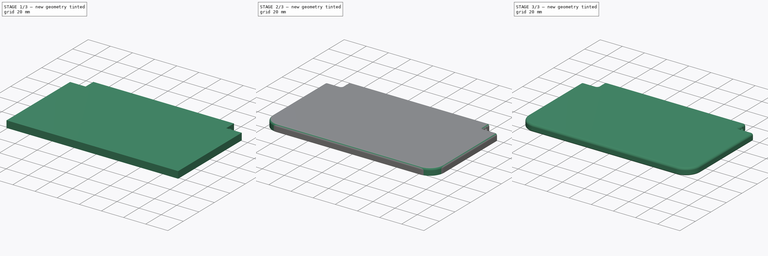
[diagram: build sequence overview — one tinted view per stage of 3, left to right]
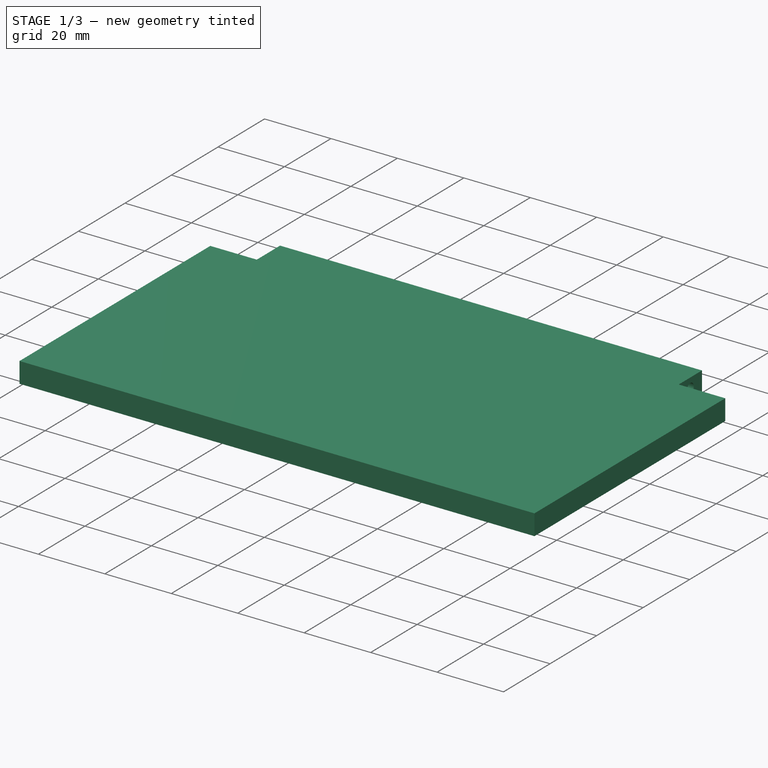
[diagram: stage 1 of 3 — iso view after this stage's code; geometry added in this stage tinted green]
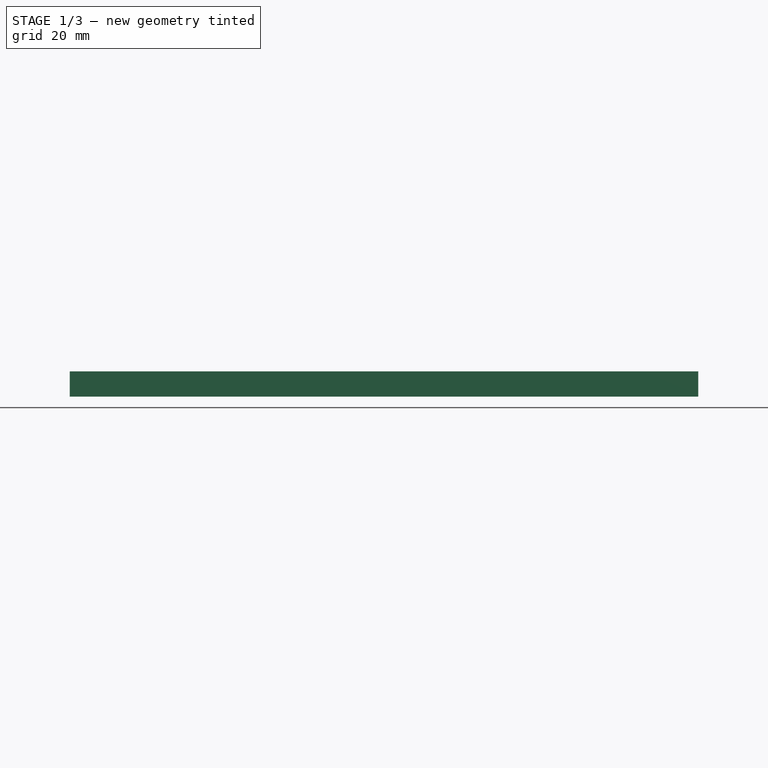
[diagram: stage 1 of 3 — front view after this stage's code; geometry added in this stage tinted green]
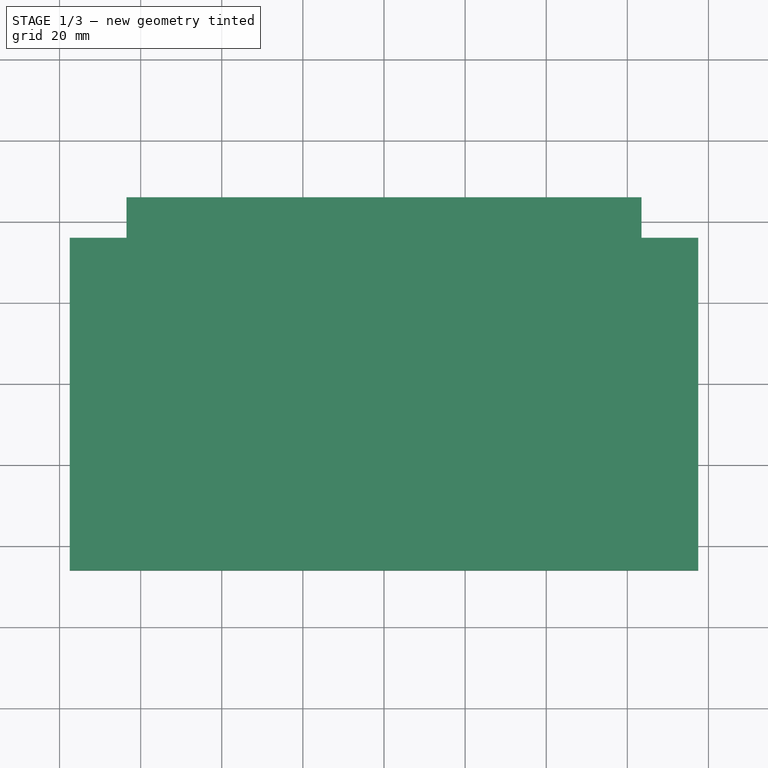
[diagram: stage 1 of 3 — top view after this stage's code; geometry added in this stage tinted green]
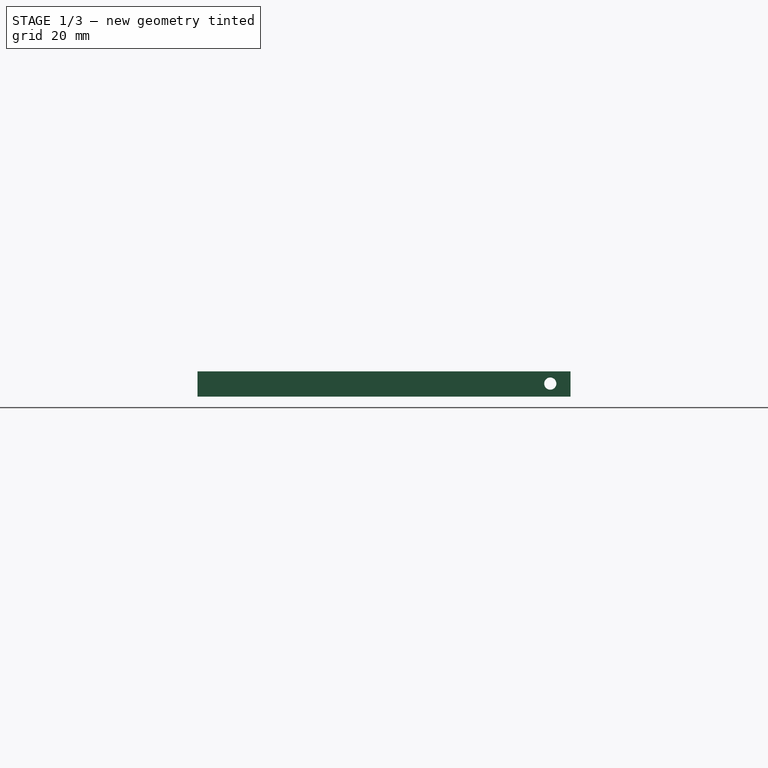
[diagram: stage 1 of 3 — right view after this stage's code; geometry added in this stage tinted green]
FCSTD DOCUMENT  (FreeCAD 0.20R29410 (Git))
Label: Nintendo_3DS_top
License: All rights reserved
LicenseURL: http://en.wikipedia.org/wiki/All_rights_reserved
objects: PartDesign::Fillet×4, Sketcher::SketchObject×3, PartDesign::Pad×2, App::Part×1, PartDesign::Pocket×1, PartDesign::Body×1
note: 18 computed .brp shape members not serialized (recipe doc carries the construction recipe); baked Part::Feature solids carry a one-line shape summary decoded from their .brp

FEATURE [App::Part] Part  label="Nintendo_3DS_top"
  Origin = -> Origin
FEATURE [Sketcher::SketchObject] Sketch
  FullyConstrained = true
  MapMode = 5
  Support = -> [XY_Plane001]
  sketch-geometry (17):
    g0: LineSegment StartX=-77.5 StartY=46 StartZ=0 EndX=-77.5 EndY=-46 EndZ=0
    g1: LineSegment StartX=-77.5 StartY=-46 StartZ=0 EndX=77.5 EndY=-46 EndZ=0
    g2: LineSegment StartX=77.5 StartY=-46 StartZ=0 EndX=77.5 EndY=46 EndZ=0
    g3: LineSegment StartX=77.5 StartY=46 StartZ=0 EndX=-77.5 EndY=46 EndZ=0
    g4: GeomPoint X=0 Y=0 Z=0
    g5: LineSegment StartX=-77.5 StartY=46 StartZ=0 EndX=-63.5 EndY=46 EndZ=0
    g6: LineSegment StartX=-63.5 StartY=46 StartZ=0 EndX=-63.5 EndY=36 EndZ=0
    g7: LineSegment StartX=-63.5 StartY=36 StartZ=0 EndX=-77.5 EndY=36 EndZ=0
    g8: LineSegment StartX=-77.5 StartY=36 StartZ=0 EndX=-77.5 EndY=46 EndZ=0
    g9: LineSegment StartX=77.5 StartY=46 StartZ=0 EndX=63.5 EndY=46 EndZ=0
    g10: LineSegment StartX=63.5 StartY=46 StartZ=0 EndX=63.5 EndY=36 EndZ=0
    g11: LineSegment StartX=63.5 StartY=36 StartZ=0 EndX=77.5 EndY=36 EndZ=0
    g12: LineSegment StartX=77.5 StartY=36 StartZ=0 EndX=77.5 EndY=46 EndZ=0
    g13: LineSegment StartX=-63.5 StartY=36 StartZ=0 EndX=63.5 EndY=36 EndZ=0
    g14: LineSegment StartX=-63.5 StartY=46 StartZ=0 EndX=63.5 EndY=46 EndZ=0
    g15: LineSegment StartX=-77.5 StartY=36 StartZ=0 EndX=-77.5 EndY=-46 EndZ=0
    g16: LineSegment StartX=77.5 StartY=36 StartZ=0 EndX=77.5 EndY=-46 EndZ=0
  constraints (42):
    c: Coincident(g0,g1)
    c: Coincident(g1,g2)
    c: Coincident(g2,g3)
    c: Coincident(g3,g0)
    c: Horizontal(g1)
    c: Horizontal(g3)
    c: Vertical(g0)
    c: Vertical(g2)
    c: Symmetric(g1,g0,g4)
    c: Coincident(g4,g-1)
    c: Distance(g2) = 92
    c: Distance(g1) = 155
    c: Coincident(g5,g6)
    c: Coincident(g6,g7)
    c: Coincident(g7,g8)
    c: Coincident(g8,g5)
    c: Horizontal(g5)
    c: Horizontal(g7)
    c: Vertical(g6)
    c: Vertical(g8)
    c: Coincident(g5,g0)
    c: Coincident(g9,g10)
    c: Coincident(g10,g11)
    c: Coincident(g11,g12)
    c: Coincident(g12,g9)
    c: Horizontal(g9)
    c: Horizontal(g11)
    c: Vertical(g10)
    c: Vertical(g12)
    c: Coincident(g9,g2)
    c: Distance(g7) = 14
    c: Distance(g6) = 10
    c: Equal(g10,g6)
    c: Equal(g7,g11)
    c: Coincident(g13,g6)
    c: Coincident(g13,g10)
    c: Coincident(g14,g5)
    c: Coincident(g14,g9)
    c: Coincident(g15,g7)
    c: Coincident(g15,g1)
    c: Coincident(g16,g11)
    c: Coincident(g16,g1)
FEATURE [PartDesign::Pad] Pad
  Direction = (0,0,1)
  Length = 6.2
  Length2 = 10
  Profile = -> Sketch
  ReferenceAxis = -> Sketch [N_Axis]
  Refine = true
  Type = 0
FEATURE [Sketcher::SketchObject] Sketch001
  ExternalGeometry = -> [Pad]
  FullyConstrained = true
  MapMode = 5
  Placement = pos=(-63.5,0,0) rot=(0.57735,-0.57735,-0.57735;2.0944rad)
  Support = -> [Pad]
  sketch-geometry (16):
    g0: GeomPoint X=-46 Y=6.2 Z=0
    g1: GeomPoint X=-46 Y=6.2 Z=0
    g2: GeomPoint X=-36 Y=6.2 Z=0
    g3: GeomPoint X=-36 Y=6.2 Z=0
    g4: GeomPoint X=-36 Y=0 Z=0
    g5: GeomPoint X=-36 Y=0 Z=0
    g6: GeomPoint X=-46 Y=0 Z=0
    g7: GeomPoint X=-46 Y=0 Z=0
    g8: LineSegment StartX=-46 StartY=6.2 StartZ=0 EndX=-46 EndY=-1.8 EndZ=0
    g9: LineSegment StartX=-36 StartY=6.2 StartZ=0 EndX=-36 EndY=-1.8 EndZ=0
    g10: LineSegment StartX=-46 StartY=-1.8 StartZ=0 EndX=-36 EndY=6.2 EndZ=0
    g11: LineSegment StartX=-46 StartY=6.2 StartZ=0 EndX=-36 EndY=-1.8 EndZ=0
    g12: GeomPoint X=-41 Y=2.2 Z=0
    g13: GeomPoint X=-41 Y=2.2 Z=0
    g14: Circle CenterX=-41 CenterY=3.2 CenterZ=0 NormalX=0 NormalY=0 NormalZ=1 AngleXU=0 Radius=1.5
    g15: LineSegment StartX=-41 StartY=2.2 StartZ=0 EndX=-41 EndY=3.2 EndZ=0
  constraints (30):
    c: PointOnObject(g0,g-4)
    c: PointOnObject(g1,g-3)
    c: PointOnObject(g2,g-3)
    c: PointOnObject(g3,g-5)
    c: PointOnObject(g4,g-5)
    c: PointOnObject(g5,g-1)
    c: PointOnObject(g6,g-4)
    c: PointOnObject(g7,g-1)
    c: Coincident(g0,g1)
    c: Coincident(g2,g3)
    c: Coincident(g5,g4)
    c: Coincident(g6,g7)
    c: Coincident(g8,g0)
    c: PointOnObject(g8,g-4)
    c: Distance(g8) = 8
    c: Coincident(g9,g2)
    c: PointOnObject(g9,g-5)
    c: Equal(g8,g9)
    c: Coincident(g10,g8)
    c: Coincident(g10,g2)
    c: Coincident(g11,g0)
    c: Coincident(g11,g9)
    c: PointOnObject(g12,g10)
    c: PointOnObject(g13,g11)
    c: Coincident(g12,g13)
    c: Coincident(g15,g12)
    c: Coincident(g15,g14)
    c: Vertical(g15)
    c: Distance(g15) = 1
    c: Diameter(g14) = 3
FEATURE [PartDesign::Pocket] Pocket
  BaseFeature = -> Pad
  Direction = (1,0,0)
  Length = 0
  Length2 = 5
  Profile = -> Sketch001
  ReferenceAxis = -> Sketch001 [N_Axis]
  Refine = true
  Type = 3
  UpToFace = -> Pad [Face7]
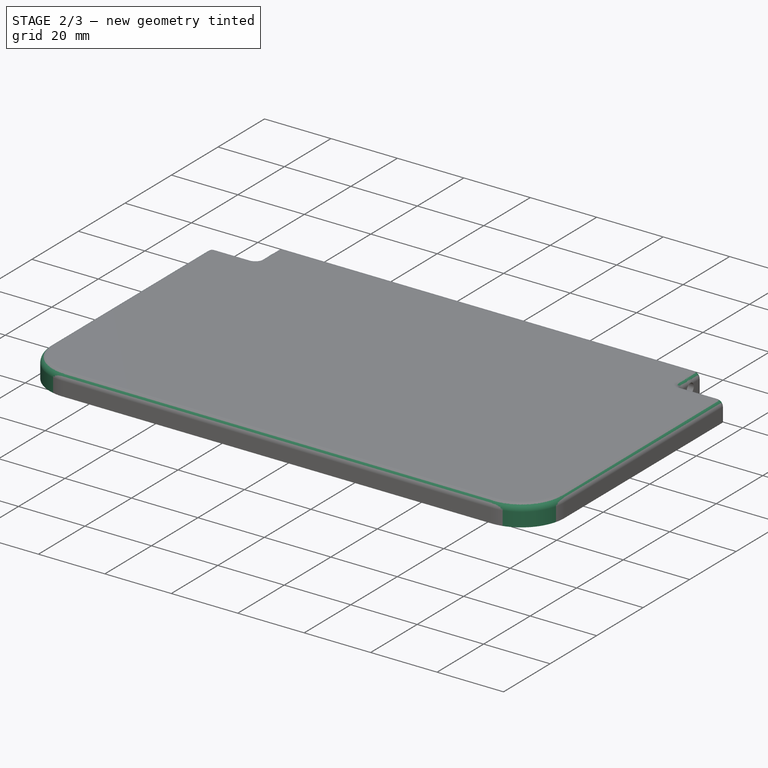
[diagram: stage 2 of 3 — iso view after this stage's code; geometry added in this stage tinted green]
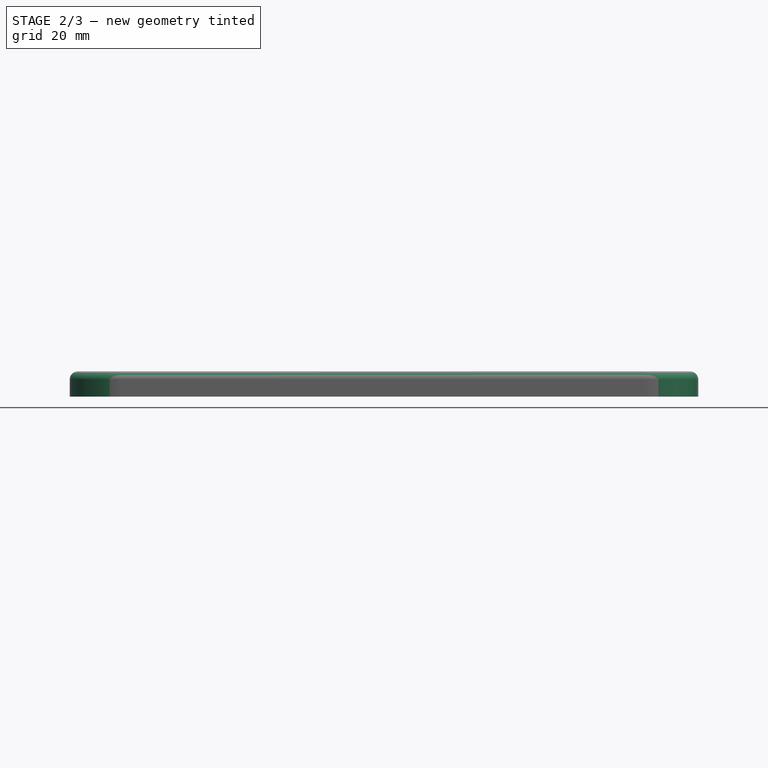
[diagram: stage 2 of 3 — front view after this stage's code; geometry added in this stage tinted green]
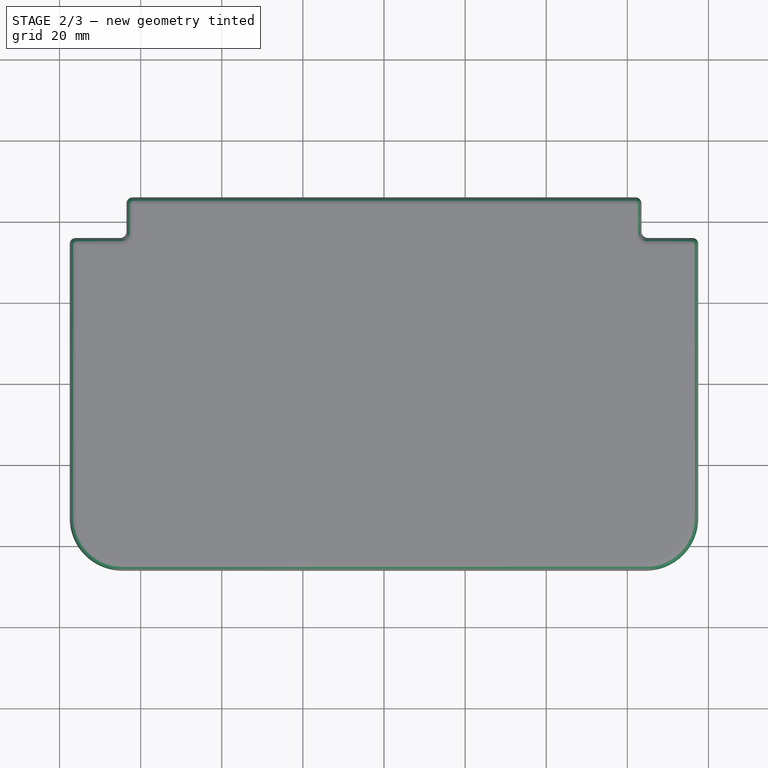
[diagram: stage 2 of 3 — top view after this stage's code; geometry added in this stage tinted green]
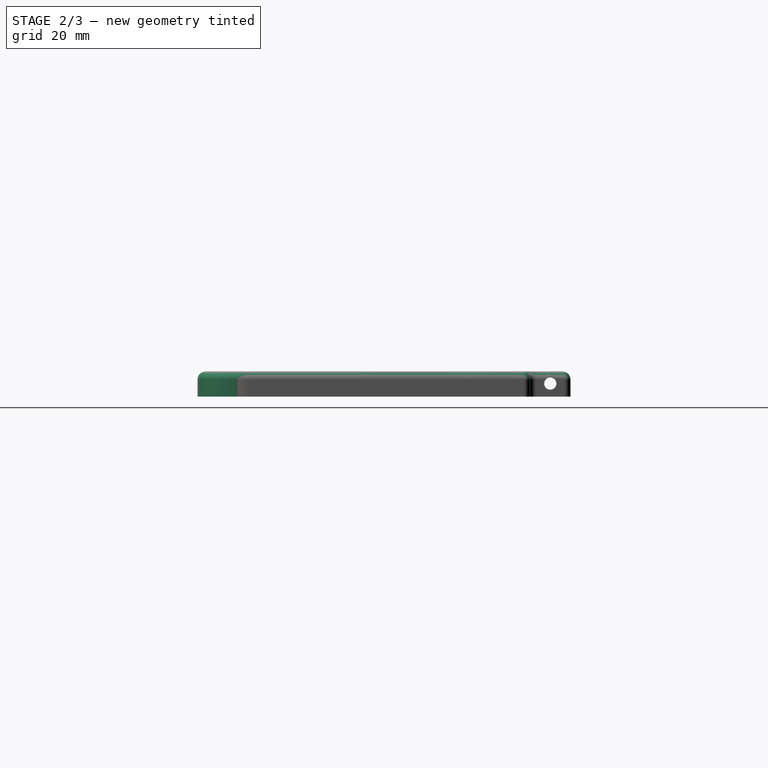
[diagram: stage 2 of 3 — right view after this stage's code; geometry added in this stage tinted green]
FEATURE [PartDesign::Fillet] Fillet
  Base = -> Pocket [Edge25,Edge26]
  BaseFeature = -> Pocket
  Radius = 13
  Refine = true
  SupportTransform = false
  UseAllEdges = false
FEATURE [PartDesign::Fillet] Fillet001
  Base = -> Fillet [Edge12,Edge16,Edge20,Edge25,Edge30,Edge27]
  BaseFeature = -> Fillet
  Radius = 1.5
  Refine = true
  SupportTransform = false
  UseAllEdges = false
FEATURE [PartDesign::Fillet] Fillet002
  Base = -> Fillet001 [Face18]
  BaseFeature = -> Fillet001
  Radius = 2
  Refine = true
  SupportTransform = false
  UseAllEdges = false
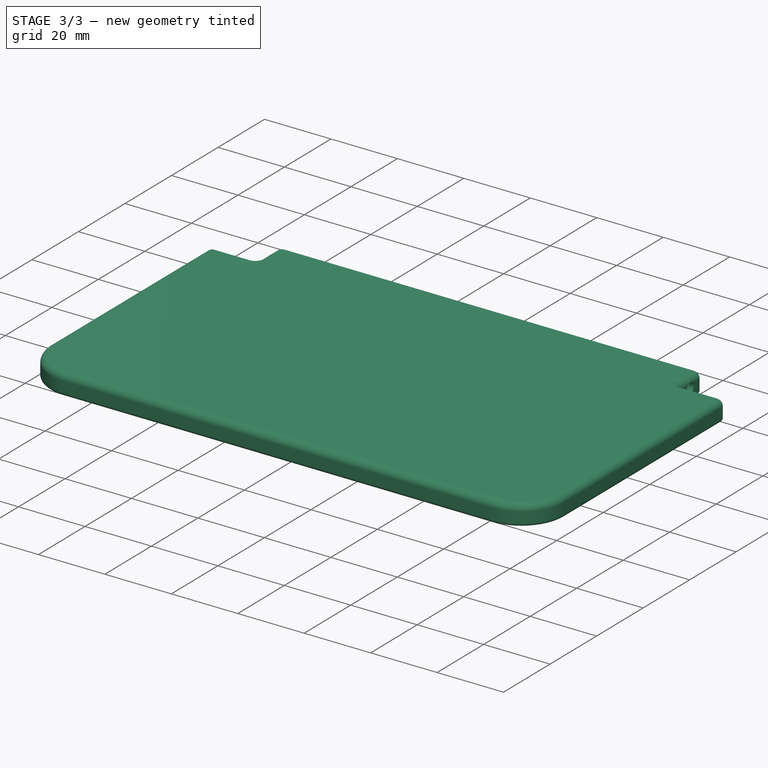
[diagram: stage 3 of 3 — iso view after this stage's code; geometry added in this stage tinted green]
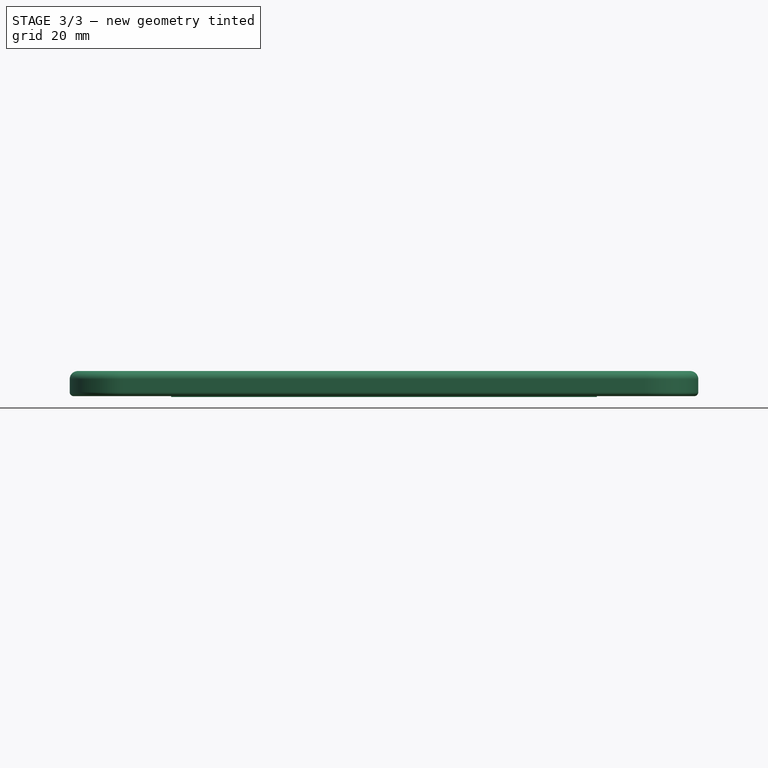
[diagram: stage 3 of 3 — front view after this stage's code; geometry added in this stage tinted green]
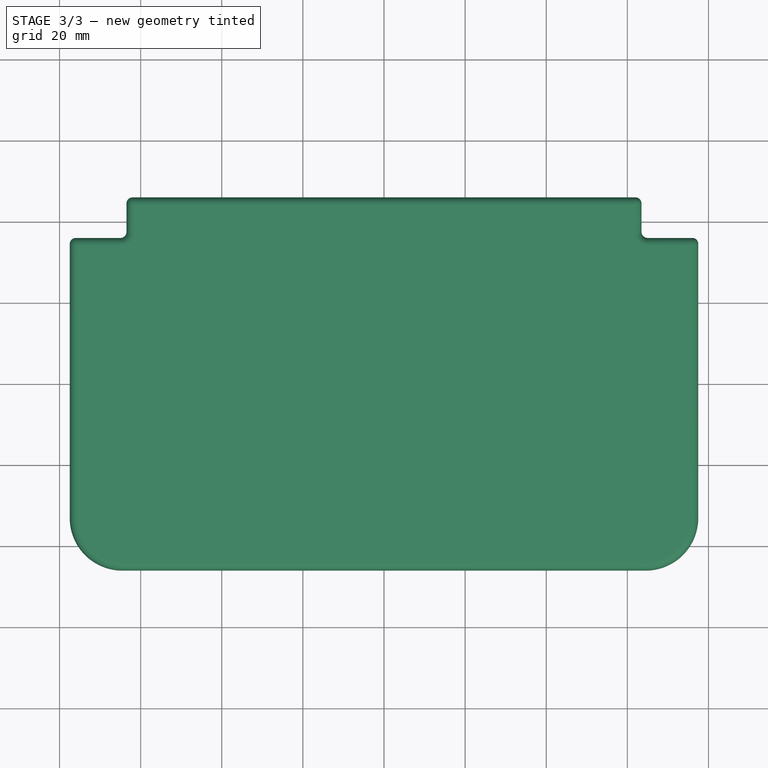
[diagram: stage 3 of 3 — top view after this stage's code; geometry added in this stage tinted green]
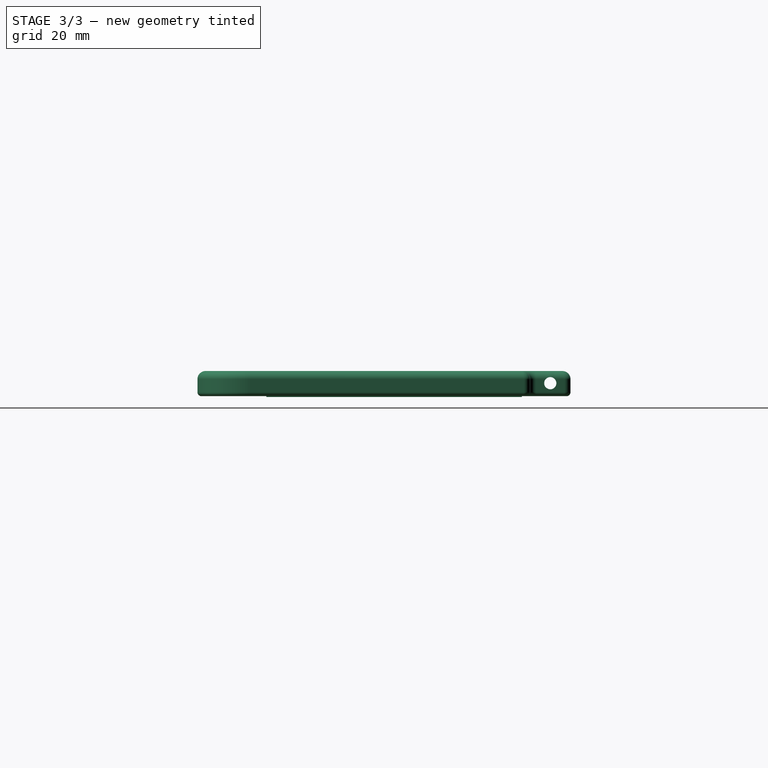
[diagram: stage 3 of 3 — right view after this stage's code; geometry added in this stage tinted green]
FEATURE [PartDesign::Fillet] Fillet003
  Base = -> Fillet002 [Face4]
  BaseFeature = -> Fillet002
  Radius = 1
  Refine = true
  SupportTransform = false
  UseAllEdges = false
FEATURE [Sketcher::SketchObject] Sketch002
  ExternalGeometry = -> [Pocket]
  FullyConstrained = true
  MapMode = 5
  Support = -> [XY_Plane001]
  sketch-geometry (15):
    g0: LineSegment StartX=-63.5 StartY=36 StartZ=0 EndX=63.5 EndY=36 EndZ=0
    g1: GeomPoint X=0 Y=36 Z=0
    g2: GeomPoint X=0 Y=36 Z=0
    g3: LineSegment StartX=0 StartY=36 StartZ=0 EndX=0 EndY=-29 EndZ=0
    g4: LineSegment StartX=-63.5 StartY=36 StartZ=0 EndX=-63.5 EndY=-29 EndZ=0
    g5: LineSegment StartX=63.5 StartY=36 StartZ=0 EndX=63.5 EndY=-29 EndZ=0
    g6: LineSegment StartX=-63.5 StartY=-29 StartZ=0 EndX=63.5 EndY=-29 EndZ=0
    g7: LineSegment StartX=-63.5 StartY=34 StartZ=0 EndX=63.5 EndY=34 EndZ=0
    g8: LineSegment StartX=0 StartY=36 StartZ=0 EndX=0 EndY=34 EndZ=0
    g9: LineSegment StartX=-63.5 StartY=-29 StartZ=0 EndX=-52.5 EndY=-29 EndZ=0
    g10: LineSegment StartX=63.5 StartY=-29 StartZ=0 EndX=52.5 EndY=-29 EndZ=0
    g11: LineSegment StartX=-52.5 StartY=-29 StartZ=0 EndX=-52.5 EndY=34 EndZ=0
    g12: LineSegment StartX=52.5 StartY=-29 StartZ=0 EndX=52.5 EndY=34 EndZ=0
    g13: LineSegment StartX=-52.5 StartY=-29 StartZ=0 EndX=52.5 EndY=-29 EndZ=0
    g14: LineSegment StartX=-52.5 StartY=34 StartZ=0 EndX=52.5 EndY=34 EndZ=0
  constraints (39):
    c: Coincident(g0,g-5)
    c: Coincident(g0,g-3)
    c: PointOnObject(g1,g0)
    c: PointOnObject(g2,g-2)
    c: Coincident(g1,g2)
    c: Coincident(g3,g1)
    c: PointOnObject(g3,g-2)
    c: Distance(g3) = 65
    c: Coincident(g4,g0)
    c: Vertical(g4)
    c: Coincident(g5,g0)
    c: Vertical(g5)
    c: Equal(g5,g3)
    c: Equal(g4,g3)
    c: Coincident(g6,g4)
    c: Coincident(g6,g5)
    c: PointOnObject(g7,g4)
    c: PointOnObject(g7,g5)
    c: Horizontal(g7)
    c: Coincident(g8,g1)
    c: PointOnObject(g8,g7)
    c: Distance(g8) = 2
    c: Vertical(g8)
    c: Coincident(g9,g4)
    c: PointOnObject(g9,g6)
    c: Distance(g9,g4) = 11
    c: Coincident(g10,g5)
    c: PointOnObject(g10,g6)
    c: Distance(g10,g5) = 11
    c: Coincident(g11,g9)
    c: PointOnObject(g11,g7)
    c: Vertical(g11)
    c: Coincident(g12,g10)
    c: PointOnObject(g12,g7)
    c: Vertical(g12)
    c: Coincident(g13,g11)
    c: Coincident(g13,g12)
    c: Coincident(g14,g11)
    c: Coincident(g14,g12)
FEATURE [PartDesign::Pad] Pad001
  BaseFeature = -> Fillet003
  Direction = (0,0,1)
  Length = 0.2
  Length2 = 10
  Profile = -> Sketch002
  ReferenceAxis = -> Sketch002 [N_Axis]
  Refine = true
  Reversed = true
  Type = 0
FEATURE [PartDesign::Body] Body  label="top"
  Group = -> [Sketch,Pad,Sketch001,Pocket,Fillet,Fillet001,Fillet002,Fillet003,Sketch002,Pad001]
  Origin = -> Origin001
  Tip = -> Pad001
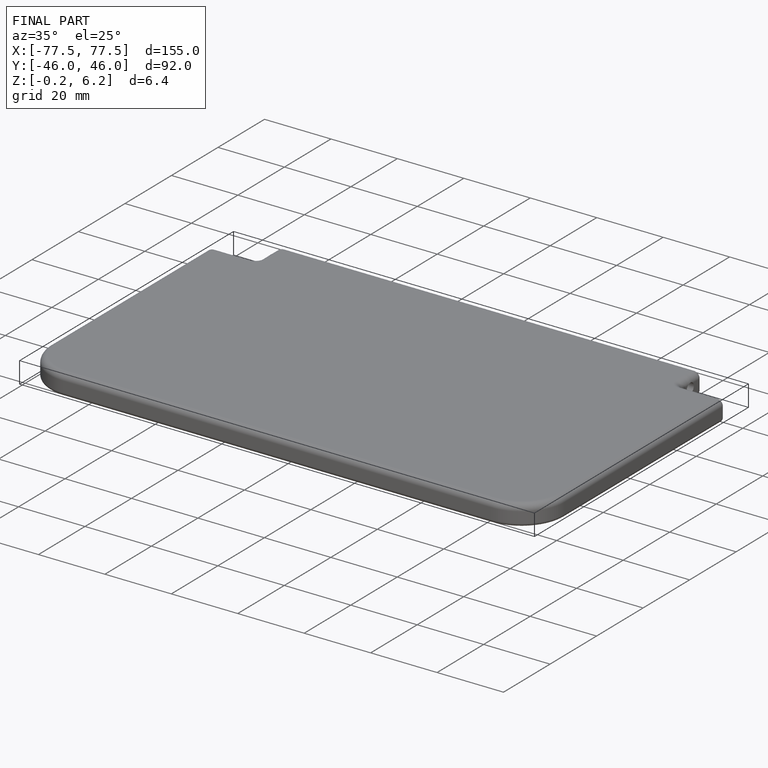
[diagram: finished part — iso view with bounding-box wireframe]
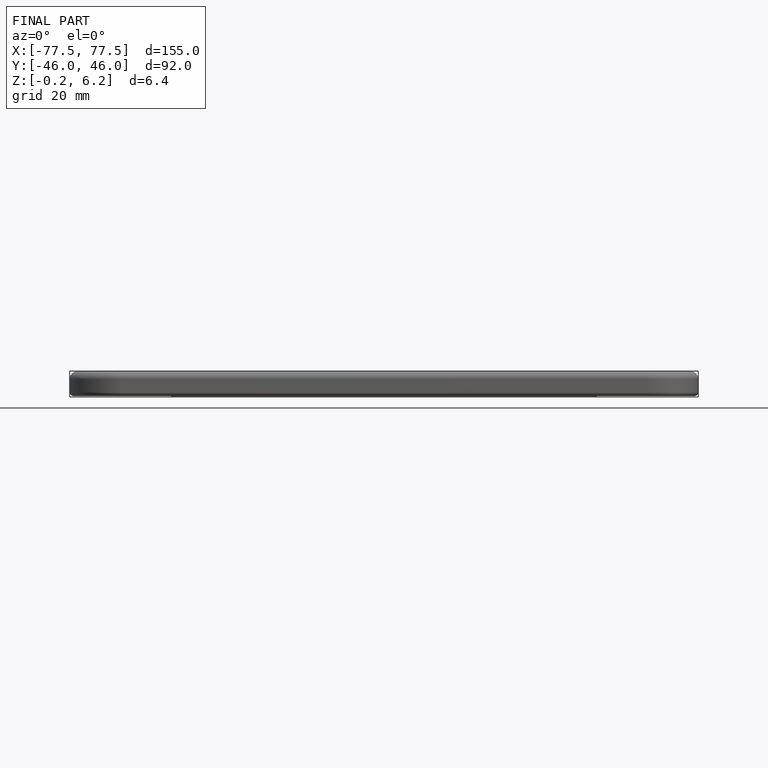
[diagram: finished part — front view with bounding-box wireframe]
